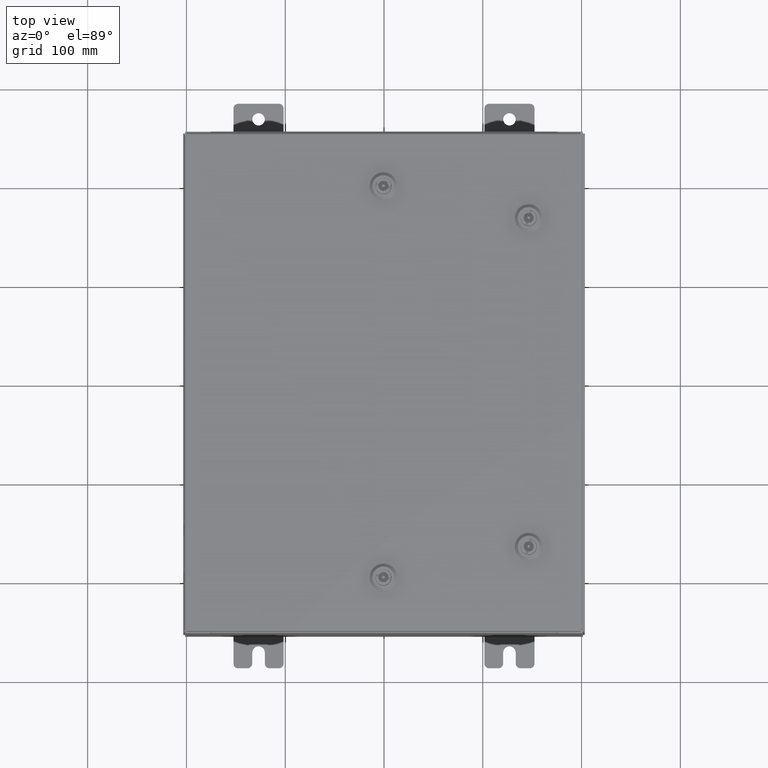
[diagram: clean part render]
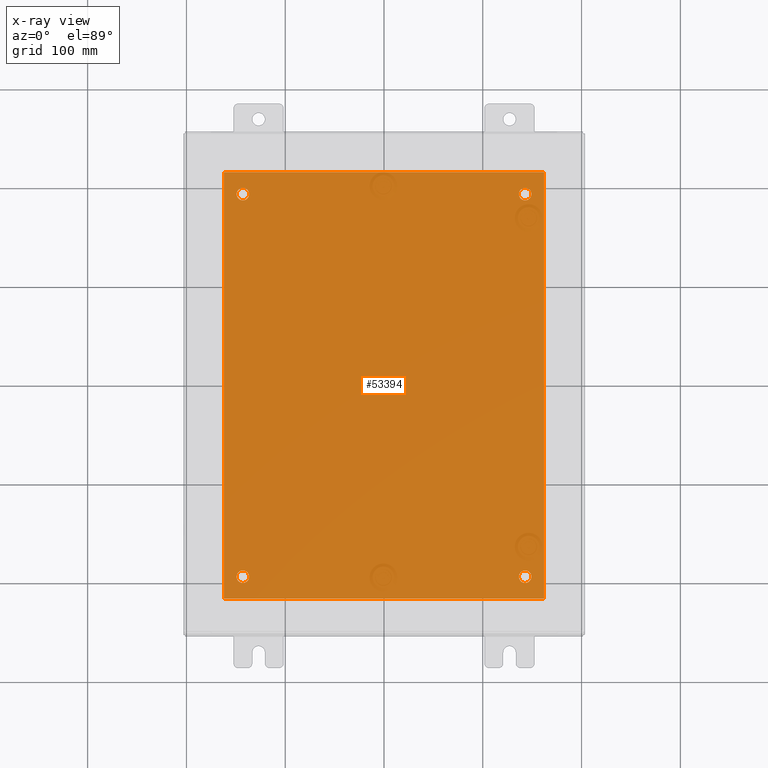
[diagram: x-ray — body ghosted, one internal face saturated and labeled with its STEP entity id]
A machine part, top view, then the same camera in x-ray: the body is ghosted and one INTERNAL B-rep face — a face not visible from any outside direction — is saturated and labeled: STEP entity #53394.
In plain terms, the highlighted planar face has unit normal (0, 0, -1).
Its self-contained STEP definition (entity closure, byte-faithful):
#92 = ORIENTED_EDGE ( 'NONE', *, *, #61191, .T. ) ;
#1313 = CARTESIAN_POINT ( 'NONE',  ( 5.625000000000000000, 7.625000000000002700, -0.1039999999999999800 ) ) ;
#1706 = FACE_BOUND ( 'NONE', #22394, .T. ) ;
#2526 = LINE ( 'NONE', #29839, #39874 ) ;
#3005 = DIRECTION ( 'NONE',  ( -1.000000000000000000, 0.0000000000000000000, 0.0000000000000000000 ) ) ;
#4912 = CARTESIAN_POINT ( 'NONE',  ( -6.499999999999998200, -8.499999999999998200, -0.1039999999999999800 ) ) ;
#5809 = CARTESIAN_POINT ( 'NONE',  ( 5.875000000000003600, -7.625000000000000900, -0.1039999999999999800 ) ) ;
#5957 = LINE ( 'NONE', #45422, #17418 ) ;
#6176 = ORIENTED_EDGE ( 'NONE', *, *, #60564, .F. ) ;
#6216 = DIRECTION ( 'NONE',  ( -1.000000000000000000, 0.0000000000000000000, 0.0000000000000000000 ) ) ;
#6310 = FACE_BOUND ( 'NONE', #15039, .T. ) ;
#7954 = DIRECTION ( 'NONE',  ( -1.000000000000000000, 0.0000000000000000000, -0.0000000000000000000 ) ) ;
#8392 = ORIENTED_EDGE ( 'NONE', *, *, #59801, .T. ) ;
#8665 = LINE ( 'NONE', #4912, #55819 ) ;
#9188 = ORIENTED_EDGE ( 'NONE', *, *, #16115, .T. ) ;
#9610 = DIRECTION ( 'NONE',  ( -0.0000000000000000000, -0.0000000000000000000, 1.000000000000000000 ) ) ;
#10248 = EDGE_CURVE ( 'NONE', #33477, #59380, #33325, .T. ) ;
#10561 = VERTEX_POINT ( 'NONE', #17780 ) ;
#10701 = CARTESIAN_POINT ( 'NONE',  ( 5.625000000000004400, -7.625000000000000900, -0.1039999999999999800 ) ) ;
#11778 = AXIS2_PLACEMENT_3D ( 'NONE', #10701, #44776, #15608 ) ;
#14059 = CIRCLE ( 'NONE', #23918, 0.2499999999999998100 ) ;
#14403 = DIRECTION ( 'NONE',  ( -0.0000000000000000000, -0.0000000000000000000, 1.000000000000000000 ) ) ;
#14789 = CIRCLE ( 'NONE', #28654, 0.2499999999999998100 ) ;
#15039 = EDGE_LOOP ( 'NONE', ( #9188, #24733 ) ) ;
#15175 = ORIENTED_EDGE ( 'NONE', *, *, #47495, .F. ) ;
#15608 = DIRECTION ( 'NONE',  ( -1.000000000000000000, 0.0000000000000000000, 0.0000000000000000000 ) ) ;
#15638 = CARTESIAN_POINT ( 'NONE',  ( -6.499999999999998200, 8.500000000000000000, -0.1039999999999999800 ) ) ;
#16111 = DIRECTION ( 'NONE',  ( -0.0000000000000000000, -0.0000000000000000000, 1.000000000000000000 ) ) ;
#16115 = EDGE_CURVE ( 'NONE', #56934, #62142, #23961, .T. ) ;
#16334 = CARTESIAN_POINT ( 'NONE',  ( -5.375000000000000900, -7.625000000000001800, -0.1039999999999999800 ) ) ;
#17418 = VECTOR ( 'NONE', #50272, 39.37007874015748100 ) ;
#17780 = CARTESIAN_POINT ( 'NONE',  ( -5.375000000000000900, 7.625000000000001800, -0.1039999999999999800 ) ) ;
#18165 = CARTESIAN_POINT ( 'NONE',  ( -6.382999999999998200, 8.500000000000000000, -0.1039999999999998100 ) ) ;
#18516 = CIRCLE ( 'NONE', #11778, 0.2499999999999987000 ) ;
#18753 = CARTESIAN_POINT ( 'NONE',  ( 5.375000000000006200, -7.625000000000000900, -0.1039999999999999800 ) ) ;
#20493 = VECTOR ( 'NONE', #20589, 39.37007874015748100 ) ;
#20589 = DIRECTION ( 'NONE',  ( -1.000000000000000000, -0.0000000000000000000, -0.0000000000000000000 ) ) ;
#21113 = ORIENTED_EDGE ( 'NONE', *, *, #47133, .T. ) ;
#22394 = EDGE_LOOP ( 'NONE', ( #8392, #92 ) ) ;
#22679 = EDGE_LOOP ( 'NONE', ( #39102, #28014 ) ) ;
#23133 = VERTEX_POINT ( 'NONE', #40715 ) ;
#23918 = AXIS2_PLACEMENT_3D ( 'NONE', #27014, #61062, #31943 ) ;
#23961 = CIRCLE ( 'NONE', #53660, 0.2499999999999987000 ) ;
#24733 = ORIENTED_EDGE ( 'NONE', *, *, #53686, .T. ) ;
#25226 = CARTESIAN_POINT ( 'NONE',  ( 5.625000000000000000, 7.625000000000002700, -0.1039999999999999800 ) ) ;
#25705 = ORIENTED_EDGE ( 'NONE', *, *, #60472, .F. ) ;
#27014 = CARTESIAN_POINT ( 'NONE',  ( -5.625000000000000000, 7.625000000000001800, -0.1039999999999999800 ) ) ;
#27343 = PLANE ( 'NONE',  #32615 ) ;
#27357 = CIRCLE ( 'NONE', #58866, 0.2499999999999987000 ) ;
#27633 = FACE_BOUND ( 'NONE', #50297, .T. ) ;
#28014 = ORIENTED_EDGE ( 'NONE', *, *, #28283, .T. ) ;
#28283 = EDGE_CURVE ( 'NONE', #23133, #10561, #14059, .T. ) ;
#28654 = AXIS2_PLACEMENT_3D ( 'NONE', #61334, #32199, #3005 ) ;
#29308 = CARTESIAN_POINT ( 'NONE',  ( 6.383000000000000900, 8.500000000000000000, -0.1039999999999999800 ) ) ;
#29839 = CARTESIAN_POINT ( 'NONE',  ( -6.382999999999998200, 8.500000000000000000, -0.1039999999999998100 ) ) ;
#30131 = DIRECTION ( 'NONE',  ( -1.000000000000000000, 0.0000000000000000000, 0.0000000000000000000 ) ) ;
#31943 = DIRECTION ( 'NONE',  ( -1.000000000000000000, 0.0000000000000000000, 0.0000000000000000000 ) ) ;
#32199 = DIRECTION ( 'NONE',  ( -0.0000000000000000000, -0.0000000000000000000, 1.000000000000000000 ) ) ;
#32244 = CARTESIAN_POINT ( 'NONE',  ( 0.0000000000000000000, 0.0000000000000000000, -0.1039999999999999800 ) ) ;
#32615 = AXIS2_PLACEMENT_3D ( 'NONE', #32244, #46692, #7954 ) ;
#33325 = CIRCLE ( 'NONE', #59998, 0.2499999999999998100 ) ;
#33477 = VERTEX_POINT ( 'NONE', #16334 ) ;
#33731 = VERTEX_POINT ( 'NONE', #18165 ) ;
#34103 = DIRECTION ( 'NONE',  ( 1.000000000000000000, 0.0000000000000000000, 0.0000000000000000000 ) ) ;
#35391 = DIRECTION ( 'NONE',  ( -0.0000000000000000000, -0.0000000000000000000, 1.000000000000000000 ) ) ;
#35440 = VERTEX_POINT ( 'NONE', #29308 ) ;
#36457 = VERTEX_POINT ( 'NONE', #36721 ) ;
#36557 = EDGE_LOOP ( 'NONE', ( #15175, #45501, #25705, #6176 ) ) ;
#36721 = CARTESIAN_POINT ( 'NONE',  ( 5.375000000000001800, 7.625000000000002700, -0.1039999999999999800 ) ) ;
#38384 = CARTESIAN_POINT ( 'NONE',  ( 6.383000000000000900, -8.499999999999998200, -0.1039999999999999800 ) ) ;
#38797 = CARTESIAN_POINT ( 'NONE',  ( -5.625000000000000000, 7.625000000000001800, -0.1039999999999999800 ) ) ;
#39102 = ORIENTED_EDGE ( 'NONE', *, *, #47407, .T. ) ;
#39874 = VECTOR ( 'NONE', #58933, 39.37007874015748100 ) ;
#40559 = FACE_BOUND ( 'NONE', #22679, .T. ) ;
#40715 = CARTESIAN_POINT ( 'NONE',  ( -5.875000000000000000, 7.625000000000001800, -0.1039999999999999800 ) ) ;
#41048 = VERTEX_POINT ( 'NONE', #38384 ) ;
#42602 = ORIENTED_EDGE ( 'NONE', *, *, #10248, .T. ) ;
#43378 = VERTEX_POINT ( 'NONE', #49753 ) ;
#43544 = CARTESIAN_POINT ( 'NONE',  ( -5.625000000000000000, -7.625000000000001800, -0.1039999999999999800 ) ) ;
#43665 = DIRECTION ( 'NONE',  ( -1.000000000000000000, 0.0000000000000000000, 0.0000000000000000000 ) ) ;
#44776 = DIRECTION ( 'NONE',  ( -0.0000000000000000000, -0.0000000000000000000, 1.000000000000000000 ) ) ;
#45258 = CARTESIAN_POINT ( 'NONE',  ( 5.625000000000004400, -7.625000000000000900, -0.1039999999999999800 ) ) ;
#45422 = CARTESIAN_POINT ( 'NONE',  ( 6.383000000000002700, -8.499999999999998200, -0.1039999999999998100 ) ) ;
#45501 = ORIENTED_EDGE ( 'NONE', *, *, #47588, .F. ) ;
#46692 = DIRECTION ( 'NONE',  ( 0.0000000000000000000, 0.0000000000000000000, -1.000000000000000000 ) ) ;
#47133 = EDGE_CURVE ( 'NONE', #59380, #33477, #14789, .T. ) ;
#47407 = EDGE_CURVE ( 'NONE', #10561, #23133, #58911, .T. ) ;
#47495 = EDGE_CURVE ( 'NONE', #43378, #41048, #8665, .T. ) ;
#47588 = EDGE_CURVE ( 'NONE', #33731, #43378, #2526, .T. ) ;
#47861 = LINE ( 'NONE', #15638, #20493 ) ;
#48422 = DIRECTION ( 'NONE',  ( -1.000000000000000000, 0.0000000000000000000, 0.0000000000000000000 ) ) ;
#49753 = CARTESIAN_POINT ( 'NONE',  ( -6.382999999999998200, -8.499999999999998200, -0.1039999999999998100 ) ) ;
#50125 = DIRECTION ( 'NONE',  ( -1.000000000000000000, 0.0000000000000000000, 0.0000000000000000000 ) ) ;
#50272 = DIRECTION ( 'NONE',  ( 0.0000000000000000000, 1.000000000000000000, 0.0000000000000000000 ) ) ;
#50297 = EDGE_LOOP ( 'NONE', ( #42602, #21113 ) ) ;
#51966 = FACE_OUTER_BOUND ( 'NONE', #36557, .T. ) ;
#53394 = ADVANCED_FACE ( 'NONE', ( #27633, #6310, #1706, #40559, #51966 ), #27343, .T. ) ;
#53512 = AXIS2_PLACEMENT_3D ( 'NONE', #38797, #9610, #43665 ) ;
#53660 = AXIS2_PLACEMENT_3D ( 'NONE', #45258, #16111, #50125 ) ;
#53686 = EDGE_CURVE ( 'NONE', #62142, #56934, #18516, .T. ) ;
#53796 = VERTEX_POINT ( 'NONE', #55128 ) ;
#55128 = CARTESIAN_POINT ( 'NONE',  ( 5.874999999999999100, 7.625000000000002700, -0.1039999999999999800 ) ) ;
#55383 = CIRCLE ( 'NONE', #60516, 0.2499999999999987000 ) ;
#55819 = VECTOR ( 'NONE', #34103, 39.37007874015748100 ) ;
#56934 = VERTEX_POINT ( 'NONE', #5809 ) ;
#57094 = CARTESIAN_POINT ( 'NONE',  ( -5.875000000000000000, -7.625000000000001800, -0.1039999999999999800 ) ) ;
#58866 = AXIS2_PLACEMENT_3D ( 'NONE', #1313, #35391, #6216 ) ;
#58911 = CIRCLE ( 'NONE', #53512, 0.2499999999999998100 ) ;
#58933 = DIRECTION ( 'NONE',  ( 0.0000000000000000000, -1.000000000000000000, 0.0000000000000000000 ) ) ;
#59228 = DIRECTION ( 'NONE',  ( -0.0000000000000000000, -0.0000000000000000000, 1.000000000000000000 ) ) ;
#59380 = VERTEX_POINT ( 'NONE', #57094 ) ;
#59801 = EDGE_CURVE ( 'NONE', #53796, #36457, #27357, .T. ) ;
#59998 = AXIS2_PLACEMENT_3D ( 'NONE', #43544, #14403, #48422 ) ;
#60472 = EDGE_CURVE ( 'NONE', #35440, #33731, #47861, .T. ) ;
#60516 = AXIS2_PLACEMENT_3D ( 'NONE', #25226, #59228, #30131 ) ;
#60564 = EDGE_CURVE ( 'NONE', #41048, #35440, #5957, .T. ) ;
#61062 = DIRECTION ( 'NONE',  ( -0.0000000000000000000, -0.0000000000000000000, 1.000000000000000000 ) ) ;
#61191 = EDGE_CURVE ( 'NONE', #36457, #53796, #55383, .T. ) ;
#61334 = CARTESIAN_POINT ( 'NONE',  ( -5.625000000000000000, -7.625000000000001800, -0.1039999999999999800 ) ) ;
#62142 = VERTEX_POINT ( 'NONE', #18753 ) ;